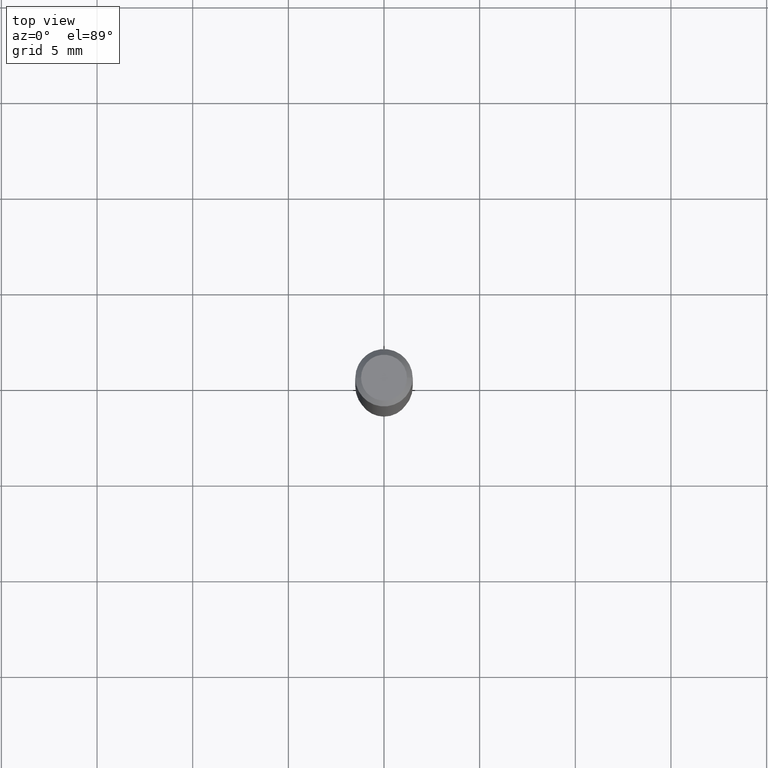
[diagram: clean part render]
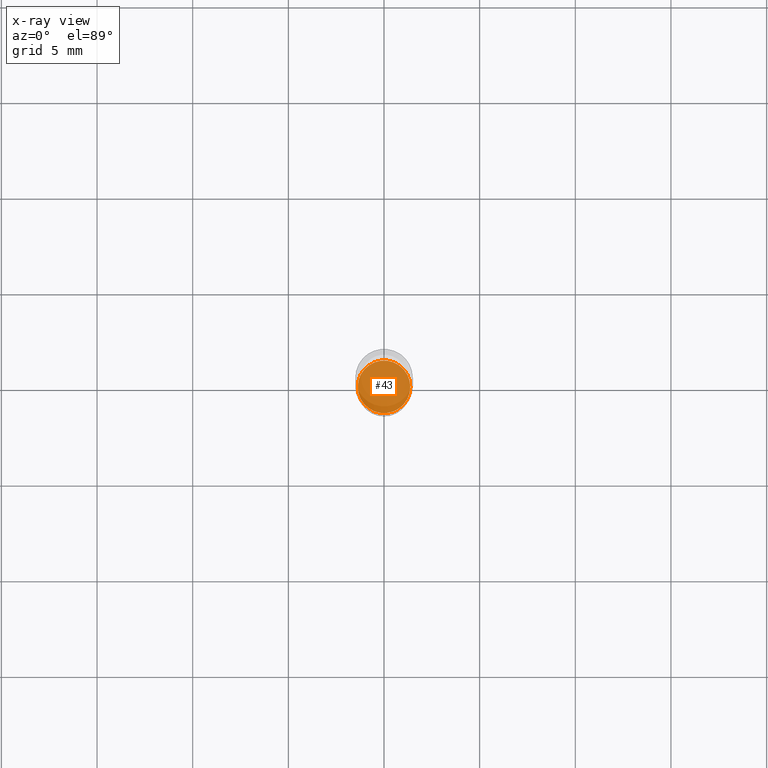
[diagram: x-ray — body ghosted, one internal face saturated and labeled with its STEP entity id]
A machine part, top view, then the same camera in x-ray: the body is ghosted and one INTERNAL B-rep face — a face not visible from any outside direction — is saturated and labeled: STEP entity #43.
In plain terms, the highlighted planar face has unit normal (-0, 0, 1).
Its self-contained STEP definition (entity closure, byte-faithful):
#35 = PLANE ( 'NONE',  #419 ) ;
#43 = ADVANCED_FACE ( 'NONE', ( #137 ), #35, .F. ) ;
#59 = DIRECTION ( 'NONE',  ( -2.445468806185136597E-29, 3.491481338843145583E-15, 1.000000000000000000 ) ) ;
#63 = ORIENTED_EDGE ( 'NONE', *, *, #223, .F. ) ;
#65 = VERTEX_POINT ( 'NONE', #302 ) ;
#114 = CARTESIAN_POINT ( 'NONE',  ( 4.608028298449357654E-29, -1.055461821140384291E-15, -1.094499999999999806 ) ) ;
#115 = CIRCLE ( 'NONE', #353, 0.05405000000000000082 ) ;
#136 = CARTESIAN_POINT ( 'NONE',  ( 2.676565608369631234E-29, -3.821426325363821984E-15, -1.094499999999999806 ) ) ;
#137 = FACE_OUTER_BOUND ( 'NONE', #171, .T. ) ;
#168 = DIRECTION ( 'NONE',  ( 1.000000000000000000, -6.982962677686266711E-15, 0.000000000000000000 ) ) ;
#171 = EDGE_LOOP ( 'NONE', ( #177, #63 ) ) ;
#177 = ORIENTED_EDGE ( 'NONE', *, *, #256, .F. ) ;
#194 = DIRECTION ( 'NONE',  ( -2.438088387897960049E-29, 3.491481338843145188E-15, 1.000000000000000000 ) ) ;
#207 = AXIS2_PLACEMENT_3D ( 'NONE', #136, #428, #168 ) ;
#218 = DIRECTION ( 'NONE',  ( 1.000000000000000000, -6.982962677686265922E-15, 4.876176775795935793E-29 ) ) ;
#223 = EDGE_CURVE ( 'NONE', #65, #474, #115, .T. ) ;
#254 = DIRECTION ( 'NONE',  ( 1.000000000000000000, -6.982962677686266711E-15, 0.000000000000000000 ) ) ;
#256 = EDGE_CURVE ( 'NONE', #474, #65, #479, .T. ) ;
#275 = CARTESIAN_POINT ( 'NONE',  ( 0.05405000000000000082, -4.198855458092764467E-15, -1.094499999999999806 ) ) ;
#302 = CARTESIAN_POINT ( 'NONE',  ( -0.05405000000000000082, -3.434728749511377515E-15, -1.094499999999999806 ) ) ;
#329 = CARTESIAN_POINT ( 'NONE',  ( 2.676565608369631234E-29, -3.821426325363821984E-15, -1.094499999999999806 ) ) ;
#353 = AXIS2_PLACEMENT_3D ( 'NONE', #329, #59, #254 ) ;
#419 = AXIS2_PLACEMENT_3D ( 'NONE', #114, #194, #218 ) ;
#428 = DIRECTION ( 'NONE',  ( -2.445468806185136597E-29, 3.491481338843145583E-15, 1.000000000000000000 ) ) ;
#474 = VERTEX_POINT ( 'NONE', #275 ) ;
#479 = CIRCLE ( 'NONE', #207, 0.05405000000000000082 ) ;